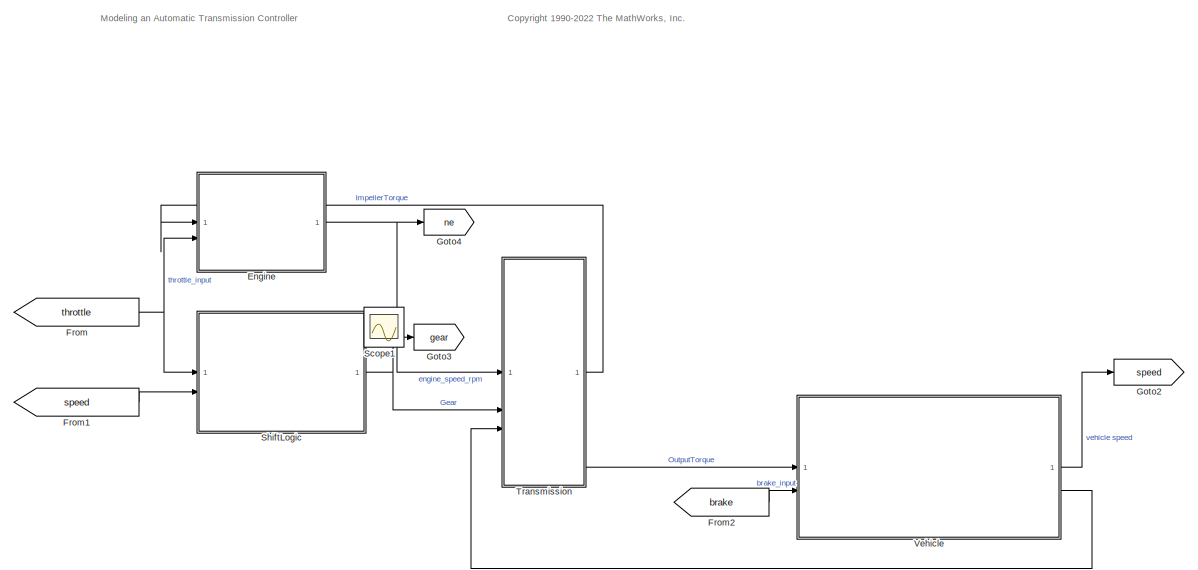
[diagram: root canvas - part 1/3, top right region]
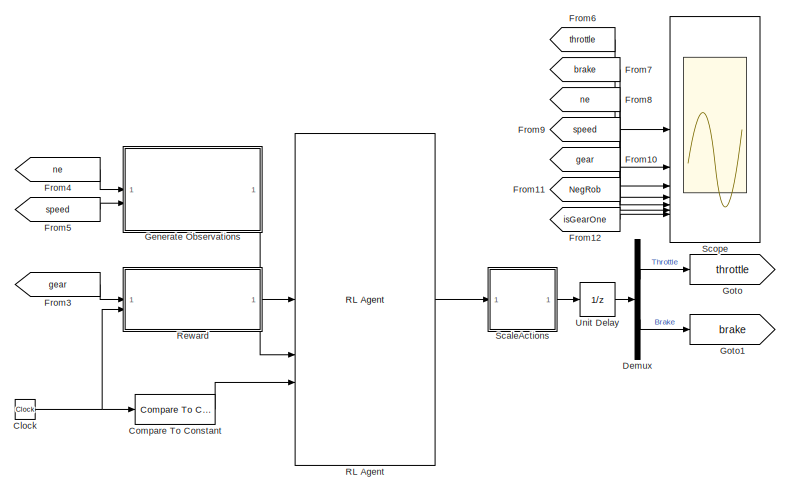
[diagram: root canvas - part 2/3, top left region]
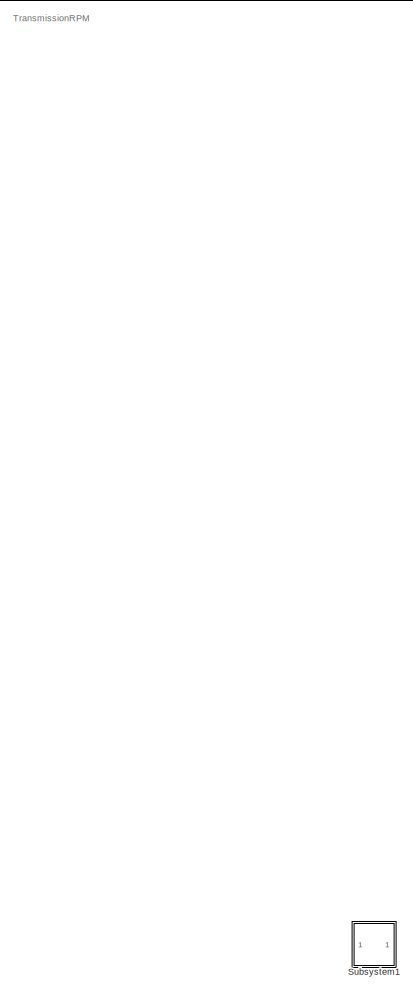
[diagram: root canvas - part 3/3, bottom right region]
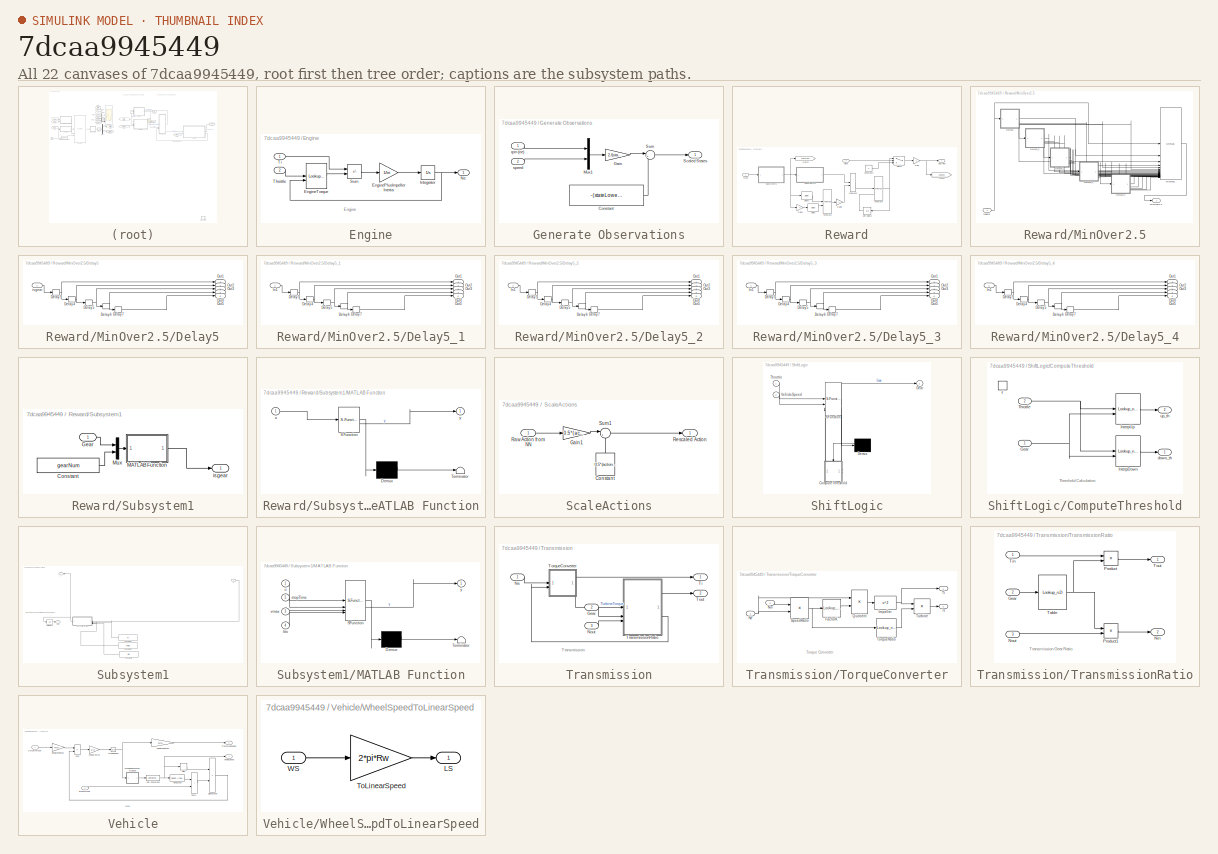
[diagram: thumbnail index - all 22 canvases of the model, root first then tree order]
MODEL slx_7dcaa9945449
KIND model
CONFIG AbsTol = 1e-6
CONFIG EnableMultiTasking = off
CONFIG FixedStep = auto
CONFIG MaxStep = auto
CONFIG MinStep = auto
CONFIG RelTol = 1e-3
CONFIG SampleTimeConstraint = Unconstrained
CONFIG SolverName = ode5
CONFIG StartTime = 0.0
CONFIG StopTime = 30
WORKSPACE source: mxarray member
WORKSPACE CONVERTER_DATA = [0 0.1 0.2 0.3 0.4 0.5 0.6 0.7 0.8 0.81 0.82 0.83 ... (63 elements, 21x3)]
WORKSPACE DOWN_TABLE = [0 0 0 0 0 0 5 5 5 5 30 30 ... (24 elements, 6x4)]
WORKSPACE DOWN_TH_BP = [0 5 40 50 90 100]
WORKSPACE EMAP = [-40 215 245 264 264 267 267 267 267 267 -44 117 ... (110 elements, 10x11)]
WORKSPACE Iei = 0.0219914882836
WORKSPACE NE_VEC = [800 1200 1600 2000 2400 2800 3200 3600 4000 4400 4800]
WORKSPACE TH_VEC = [0 20 30 40 50 60 70 80 90 100]
WORKSPACE TWAIT = 2
WORKSPACE UP_TABLE = [10 10 15 23 40 40 30 30 30 41 70 70 ... (24 elements, 6x4)]
WORKSPACE UP_TH_BP = [0 25 35 50 90 100]
WORKSPACE VEHICLE_DATA = [3.23 40 0.02 1 12.0941478573 0]
BLOCK [Clock] Clock
BLOCK [Reference] Compare To Constant  REF=simulink/Logic and Bit
Operations/Compare
To Constant
  SourceBlock = simulink/Logic and Bit\nOperations/Compare\nTo Constant
  SourceType = Compare To Constant
BLOCK [Demux] Demux
  Outputs = 2
BLOCK [SubSystem] Engine
BLOCK [Gain] Engine/EnginePlusImpellerInertia
  Gain = 1/Iei
  OutDataTypeStr = Inherit: Same as input
  ParamDataTypeStr = Inherit: Same as input
  SaturateOnIntegerOverflow = on
BLOCK [Lookup_n-D] Engine/EngineTorque
  BreakpointsForDimension1 = TH_VEC
  BreakpointsForDimension2 = NE_VEC
  InputPortMap = u0,u1
  Table = EMAP
BLOCK [Integrator] Engine/Integrator
  InitialCondition = 1000
  LimitOutput = on
  LowerSaturationLimit = 600
  UpperSaturationLimit = 6000
  ZeroCross = off
BLOCK [Outport] Engine/Ne
  Unit = rpm
  VectorParamsAs1DForOutWhenUnconnected = off
BLOCK [Sum] Engine/Sum
  IconShape = rectangular
  InputSameDT = on
  Inputs = -+
  OutDataTypeStr = Inherit: Same as first input
  SaturateOnIntegerOverflow = on
BLOCK [Inport] Engine/Throttle
  Port = 2
  Unit = %
BLOCK [Inport] Engine/Ti
  Unit = ft*lbf@torque
BLOCK [From] From
  GotoTag = throttle
BLOCK [From] From1
  GotoTag = speed
BLOCK [From] From10
  GotoTag = gear
BLOCK [From] From11
  GotoTag = NegRob
  TagVisibility = global
BLOCK [From] From12
  GotoTag = isGearOne
  TagVisibility = global
BLOCK [From] From2
  GotoTag = brake
BLOCK [From] From3
  GotoTag = gear
BLOCK [From] From4
  GotoTag = ne
BLOCK [From] From5
  GotoTag = speed
BLOCK [From] From6
  GotoTag = throttle
BLOCK [From] From7
  GotoTag = brake
BLOCK [From] From8
  GotoTag = ne
BLOCK [From] From9
  GotoTag = speed
BLOCK [SubSystem] Generate Observations
BLOCK [Constant] Generate Observations/Constant
  Value = -(stateLowerLimits + stateUpperLimits)./(stateUpperLimits-stateLowerLimits)
BLOCK [Gain] Generate Observations/Gain
  Gain = 2./(stateUpperLimits-stateLowerLimits)
BLOCK [Mux] Generate Observations/Mux1
  DisplayOption = bar
  Inputs = 2
BLOCK [Outport] Generate Observations/Scaled States
BLOCK [Sum] Generate Observations/Sum
  Inputs = |++
BLOCK [Inport] Generate Observations/rpm (ne)
BLOCK [Inport] Generate Observations/speed
  Port = 2
BLOCK [Goto] Goto
  GotoTag = throttle
BLOCK [Goto] Goto1
  GotoTag = brake
BLOCK [Goto] Goto2
  GotoTag = speed
BLOCK [Goto] Goto3
  GotoTag = gear
BLOCK [Goto] Goto4
  GotoTag = ne
BLOCK [Reference] RL Agent  REF=rllib/RL Agent
  SourceBlock = rllib/RL Agent
  SourceType = RL Agent
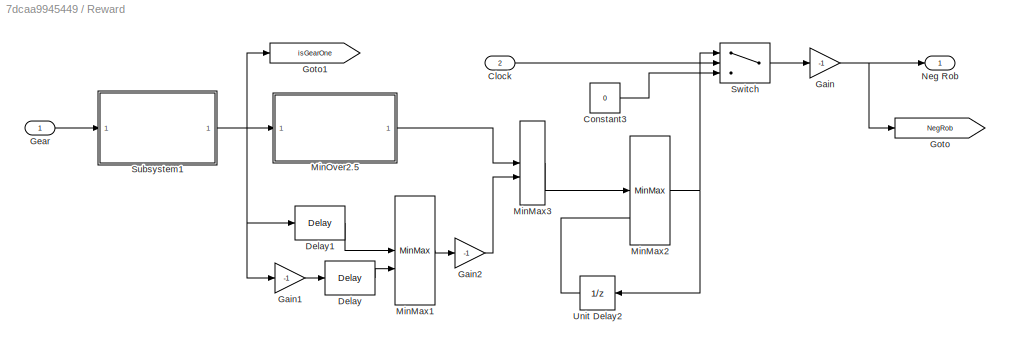
BLOCK [SubSystem] Reward
BLOCK [Inport] Reward/Clock
  Port = 2
BLOCK [Constant] Reward/Constant3
  Value = 0
BLOCK [Delay] Reward/Delay
  DelayLength = (2.5+0.2)/stepsize
  InitialCondition = -1
  InputPortMap = u0
BLOCK [Delay] Reward/Delay1
  DelayLength = (2.5+ 0.1)/stepsize
  InitialCondition = -1
  InputPortMap = u0
BLOCK [Gain] Reward/Gain
  Gain = -1
BLOCK [Gain] Reward/Gain1
  Gain = -1
BLOCK [Gain] Reward/Gain2
  Gain = -1
BLOCK [Inport] Reward/Gear
BLOCK [Goto] Reward/Goto
  GotoTag = NegRob
  TagVisibility = global
BLOCK [Goto] Reward/Goto1
  GotoTag = isGearOne
  TagVisibility = global
BLOCK [MinMax] Reward/MinMax1
  Inputs = 2
BLOCK [MinMax] Reward/MinMax2
  Inputs = 2
BLOCK [MinMax] Reward/MinMax3
  Function = max
  Inputs = 2
BLOCK [SubSystem] Reward/MinOver2.5
BLOCK [SubSystem] Reward/MinOver2.5/Delay5
BLOCK [Delay] Reward/MinOver2.5/Delay5/Delay3
  DelayLength = 0.1/stepsize
  InitialCondition = -1
  InputPortMap = u0
BLOCK [Delay] Reward/MinOver2.5/Delay5/Delay4
  DelayLength = 0.1/stepsize
  InitialCondition = -1
  InputPortMap = u0
BLOCK [Delay] Reward/MinOver2.5/Delay5/Delay5
  DelayLength = 0.1/stepsize
  InitialCondition = -1
  InputPortMap = u0
BLOCK [Delay] Reward/MinOver2.5/Delay5/Delay6
  DelayLength = 0.1/stepsize
  InitialCondition = -1
  InputPortMap = u0
BLOCK [Delay] Reward/MinOver2.5/Delay5/Delay7
  DelayLength = 0.1/stepsize
  InitialCondition = -1
  InputPortMap = u0
BLOCK [Outport] Reward/MinOver2.5/Delay5/Out1
BLOCK [Outport] Reward/MinOver2.5/Delay5/Out2
  Port = 2
BLOCK [Outport] Reward/MinOver2.5/Delay5/Out3
  Port = 3
BLOCK [Outport] Reward/MinOver2.5/Delay5/Out4
  Port = 4
BLOCK [Outport] Reward/MinOver2.5/Delay5/Out5
  Port = 5
BLOCK [Inport] Reward/MinOver2.5/Delay5/isgear
BLOCK [SubSystem] Reward/MinOver2.5/Delay5_1
BLOCK [Delay] Reward/MinOver2.5/Delay5_1/Delay3
  DelayLength = 0.1/stepsize
  InitialCondition = -1
  InputPortMap = u0
BLOCK [Delay] Reward/MinOver2.5/Delay5_1/Delay4
  DelayLength = 0.1/stepsize
  InitialCondition = -1
  InputPortMap = u0
BLOCK [Delay] Reward/MinOver2.5/Delay5_1/Delay5
  DelayLength = 0.1/stepsize
  InitialCondition = -1
  InputPortMap = u0
BLOCK [Delay] Reward/MinOver2.5/Delay5_1/Delay6
  DelayLength = 0.1/stepsize
  InitialCondition = -1
  InputPortMap = u0
BLOCK [Delay] Reward/MinOver2.5/Delay5_1/Delay7
  DelayLength = 0.1/stepsize
  InitialCondition = -1
  InputPortMap = u0
BLOCK [Inport] Reward/MinOver2.5/Delay5_1/In1
BLOCK [Outport] Reward/MinOver2.5/Delay5_1/Out1
BLOCK [Outport] Reward/MinOver2.5/Delay5_1/Out2
  Port = 2
BLOCK [Outport] Reward/MinOver2.5/Delay5_1/Out3
  Port = 3
BLOCK [Outport] Reward/MinOver2.5/Delay5_1/Out4
  Port = 4
BLOCK [Outport] Reward/MinOver2.5/Delay5_1/Out5
  Port = 5
BLOCK [SubSystem] Reward/MinOver2.5/Delay5_2
BLOCK [Delay] Reward/MinOver2.5/Delay5_2/Delay3
  DelayLength = 0.1/stepsize
  InitialCondition = -1
  InputPortMap = u0
BLOCK [Delay] Reward/MinOver2.5/Delay5_2/Delay4
  DelayLength = 0.1/stepsize
  InitialCondition = -1
  InputPortMap = u0
BLOCK [Delay] Reward/MinOver2.5/Delay5_2/Delay5
  DelayLength = 0.1/stepsize
  InitialCondition = -1
  InputPortMap = u0
BLOCK [Delay] Reward/MinOver2.5/Delay5_2/Delay6
  DelayLength = 0.1/stepsize
  InitialCondition = -1
  InputPortMap = u0
BLOCK [Delay] Reward/MinOver2.5/Delay5_2/Delay7
  DelayLength = 0.1/stepsize
  InitialCondition = -1
  InputPortMap = u0
BLOCK [Inport] Reward/MinOver2.5/Delay5_2/In1
BLOCK [Outport] Reward/MinOver2.5/Delay5_2/Out1
BLOCK [Outport] Reward/MinOver2.5/Delay5_2/Out2
  Port = 2
BLOCK [Outport] Reward/MinOver2.5/Delay5_2/Out3
  Port = 3
BLOCK [Outport] Reward/MinOver2.5/Delay5_2/Out4
  Port = 4
BLOCK [Outport] Reward/MinOver2.5/Delay5_2/Out5
  Port = 5
BLOCK [SubSystem] Reward/MinOver2.5/Delay5_3
BLOCK [Delay] Reward/MinOver2.5/Delay5_3/Delay3
  DelayLength = 0.1/stepsize
  InitialCondition = -1
  InputPortMap = u0
BLOCK [Delay] Reward/MinOver2.5/Delay5_3/Delay4
  DelayLength = 0.1/stepsize
  InitialCondition = -1
  InputPortMap = u0
BLOCK [Delay] Reward/MinOver2.5/Delay5_3/Delay5
  DelayLength = 0.1/stepsize
  InitialCondition = -1
  InputPortMap = u0
BLOCK [Delay] Reward/MinOver2.5/Delay5_3/Delay6
  DelayLength = 0.1/stepsize
  InitialCondition = -1
  InputPortMap = u0
BLOCK [Delay] Reward/MinOver2.5/Delay5_3/Delay7
  DelayLength = 0.1/stepsize
  InitialCondition = -1
  InputPortMap = u0
BLOCK [Inport] Reward/MinOver2.5/Delay5_3/In1
BLOCK [Outport] Reward/MinOver2.5/Delay5_3/Out1
BLOCK [Outport] Reward/MinOver2.5/Delay5_3/Out2
  Port = 2
BLOCK [Outport] Reward/MinOver2.5/Delay5_3/Out3
  Port = 3
BLOCK [Outport] Reward/MinOver2.5/Delay5_3/Out4
  Port = 4
BLOCK [Outport] Reward/MinOver2.5/Delay5_3/Out5
  Port = 5
BLOCK [SubSystem] Reward/MinOver2.5/Delay5_4
BLOCK [Delay] Reward/MinOver2.5/Delay5_4/Delay3
  DelayLength = 0.1/stepsize
  InitialCondition = -1
  InputPortMap = u0
BLOCK [Delay] Reward/MinOver2.5/Delay5_4/Delay4
  DelayLength = 0.1/stepsize
  InitialCondition = -1
  InputPortMap = u0
BLOCK [Delay] Reward/MinOver2.5/Delay5_4/Delay5
  DelayLength = 0.1/stepsize
  InitialCondition = -1
  InputPortMap = u0
BLOCK [Delay] Reward/MinOver2.5/Delay5_4/Delay6
  DelayLength = 0.1/stepsize
  InitialCondition = -1
  InputPortMap = u0
BLOCK [Delay] Reward/MinOver2.5/Delay5_4/Delay7
  DelayLength = 0.1/stepsize
  InitialCondition = -1
  InputPortMap = u0
BLOCK [Inport] Reward/MinOver2.5/Delay5_4/In1
BLOCK [Outport] Reward/MinOver2.5/Delay5_4/Out1
BLOCK [Outport] Reward/MinOver2.5/Delay5_4/Out2
  Port = 2
BLOCK [Outport] Reward/MinOver2.5/Delay5_4/Out3
  Port = 3
BLOCK [Outport] Reward/MinOver2.5/Delay5_4/Out4
  Port = 4
BLOCK [Outport] Reward/MinOver2.5/Delay5_4/Out5
  Port = 5
BLOCK [MinMax] Reward/MinOver2.5/MinMax1
  Inputs = 26
BLOCK [Outport] Reward/MinOver2.5/MinOver2.5
BLOCK [Inport] Reward/MinOver2.5/isgear1
BLOCK [Outport] Reward/Neg Rob
BLOCK [SubSystem] Reward/Subsystem1
BLOCK [Constant] Reward/Subsystem1/Constant
  Value = gearNum
BLOCK [Inport] Reward/Subsystem1/Gear
BLOCK [SubSystem] Reward/Subsystem1/MATLAB Function
  ErrorFcn = Stateflow.Translate.translate
  LibrarySourceBlock = simulink/User-Defined\nFunctions/MATLAB Function
  PermitHierarchicalResolution = ExplicitOnly
  SFBlockType = MATLAB Function
  TreatAsAtomicUnit = on
BLOCK [Demux] Reward/Subsystem1/MATLAB Function/ Demux 
  Outputs = 1
BLOCK [S-Function] Reward/Subsystem1/MATLAB Function/ SFunction 
  EnableBusSupport = on
  FunctionName = sf_sfun
  PortCounts = [1 2]
  SFcnIsStateOwnerBlock = off
  SFunctionDeploymentMode = off
  Tag = Stateflow S-Function 3
BLOCK [Terminator] Reward/Subsystem1/MATLAB Function/ Terminator 
BLOCK [Inport] Reward/Subsystem1/MATLAB Function/u
BLOCK [Outport] Reward/Subsystem1/MATLAB Function/y
BLOCK [Mux] Reward/Subsystem1/Mux
  DisplayOption = bar
  Inputs = 2
BLOCK [Outport] Reward/Subsystem1/isgear
BLOCK [Switch] Reward/Switch
  InputSameDT = off
  SaturateOnIntegerOverflow = off
  Threshold = specHorizon
BLOCK [UnitDelay] Reward/Unit Delay2
  HasFrameUpgradeWarning = on
  InitialCondition = 10000
  SampleTime = -1
BLOCK [SubSystem] ScaleActions
BLOCK [Constant] ScaleActions/Constant
  NameLocation = right
  Value = 0.5*(actionUpperLimits+actionLowerLimits)
BLOCK [Gain] ScaleActions/Gain1
  Gain = 0.5*(actionUpperLimits-actionLowerLimits)
BLOCK [Inport] ScaleActions/Raw Action from NN
BLOCK [Outport] ScaleActions/Rescaled Action
BLOCK [Sum] ScaleActions/Sum1
  Inputs = |++
BLOCK [Scope] Scope
  Floating = off
  NumInputPorts = 7
  ScopeSpecificationString = Simulink.scopes.TimeScopeBlockCfg('CurrentConfiguration', extmgr.ConfigurationSet(extmgr.Configuration('Core','General UI',true),extmgr.Configuration('Core','Source UI',true),extmgr.Configuration('Sources','WiredSimulink',true,'DataLoggingVariableName','ScopeData1'),extmgr.Configuration('Visuals','Time Domain',true,'SerializedDisplays',{struct('MinYLimReal','50.65644','MaxYLimReal','60.90596','YLa...<+6184ch>
BLOCK [Scope] Scope1
  Floating = off
  IOType = viewer
  NumInputPorts = 1
  ScopeSpecificationString = Simulink.scopes.TimeScopeBlockCfg('CurrentConfiguration', extmgr.ConfigurationSet(extmgr.Configuration('Core','General UI',true),extmgr.Configuration('Core','Source UI',true),extmgr.Configuration('Sources','WiredSimulink',true,'DataLoggingMaxPoints','7500','DataLoggingLimitDataPoints',true,'DataLoggingSaveFormat','Array','DataLoggingDecimation','1','DataLoggingDecimateData',true),extmgr.Configurat...<+1681ch>
BLOCK [SubSystem] ShiftLogic
  ErrorFcn = Stateflow.Translate.translate
  PermitHierarchicalResolution = ExplicitOnly
  SFBlockType = Chart
  TreatAsAtomicUnit = on
BLOCK [Demux] ShiftLogic/ Demux 
  Outputs = 1
BLOCK [S-Function] ShiftLogic/ SFunction 
  EnableBusSupport = on
  FunctionName = sf_sfun
  Parameters = TWAIT
  PortCounts = [4 4]
  SFcnIsStateOwnerBlock = off
  SFunctionDeploymentMode = off
  Tag = Stateflow S-Function 1
BLOCK [SubSystem] ShiftLogic/ComputeThreshold
  PreDeleteFcn = Stateflow.SLINSF.SimulinkMan.removePreDeleteFcn
  UndoDeleteFcn = Stateflow.SLINSF.SimulinkMan.restorePreDeleteFcn
BLOCK [Inport] ShiftLogic/ComputeThreshold/Gear
BLOCK [Lookup_n-D] ShiftLogic/ComputeThreshold/InterpDown
  BreakpointsForDimension1 = DOWN_TH_BP
  BreakpointsForDimension2 = [1:4]
  InputPortMap = u0,u1
  InputSameDT = off
  LockScale = on
  OutDataTypeStr = double
  Table = DOWN_TABLE
BLOCK [Lookup_n-D] ShiftLogic/ComputeThreshold/InterpUp
  BreakpointsForDimension1 = UP_TH_BP
  BreakpointsForDimension2 = [1:4]
  InputPortMap = u0,u1
  InputSameDT = off
  LockScale = on
  OutDataTypeStr = double
  Table = UP_TABLE
BLOCK [Inport] ShiftLogic/ComputeThreshold/Throttle
  Port = 2
BLOCK [Outport] ShiftLogic/ComputeThreshold/down_th
  InitialOutput = 0
  VectorParamsAs1DForOutWhenUnconnected = off
BLOCK [TriggerPort] ShiftLogic/ComputeThreshold/f
  CopyFcn = Stateflow.SLINSF.SimulinkMan.removeBlockPreDeleteFcn
  PreDeleteFcn = Stateflow.SLINSF.SimulinkMan.unsafePredeleteFcn
  StatesWhenEnabling = held
  TriggerType = function-call
  VariantControl = (inherit)
BLOCK [Outport] ShiftLogic/ComputeThreshold/up_th
  InitialOutput = 0
  Port = 2
  VectorParamsAs1DForOutWhenUnconnected = off
BLOCK [Outport] ShiftLogic/Gear
  VectorParamsAs1DForOutWhenUnconnected = off
BLOCK [Inport] ShiftLogic/Throttle
BLOCK [Inport] ShiftLogic/VehicleSpeed
  Port = 2
BLOCK [SubSystem] Subsystem1
  Commented = on
BLOCK [Constant] Subsystem1/Constant4
  Value = Tf
  VectorParams1D = off
BLOCK [Constant] Subsystem1/Constant5
  Value = vmax
  VectorParams1D = off
BLOCK [Constant] Subsystem1/Constant6
  Value = tau
  VectorParams1D = off
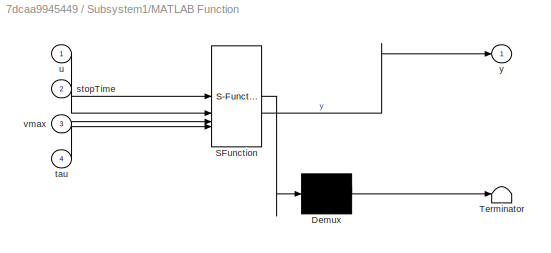
BLOCK [SubSystem] Subsystem1/MATLAB Function
  ErrorFcn = Stateflow.Translate.translate
  LibrarySourceBlock = simulink/User-Defined\nFunctions/MATLAB Function
  PermitHierarchicalResolution = ExplicitOnly
  SFBlockType = MATLAB Function
  TreatAsAtomicUnit = on
BLOCK [Demux] Subsystem1/MATLAB Function/ Demux 
  Outputs = 1
BLOCK [S-Function] Subsystem1/MATLAB Function/ SFunction 
  EnableBusSupport = on
  FunctionName = sf_sfun
  PortCounts = [4 2]
  SFcnIsStateOwnerBlock = off
  SFunctionDeploymentMode = off
  Tag = Stateflow S-Function 2
BLOCK [Terminator] Subsystem1/MATLAB Function/ Terminator 
BLOCK [Inport] Subsystem1/MATLAB Function/stopTime
  Port = 2
BLOCK [Inport] Subsystem1/MATLAB Function/tau
  Port = 4
BLOCK [Inport] Subsystem1/MATLAB Function/u
BLOCK [Inport] Subsystem1/MATLAB Function/vmax
  Port = 3
BLOCK [Outport] Subsystem1/MATLAB Function/y
BLOCK [Outport] Subsystem1/Out2
  Port = 2
BLOCK [UnitDelay] Subsystem1/Unit Delay1
  HasFrameUpgradeWarning = on
  InitialCondition = 1000
  SampleTime = -1
BLOCK [Inport] Subsystem1/u
BLOCK [Outport] Subsystem1/y
BLOCK [SubSystem] Transmission
BLOCK [Inport] Transmission/Gear
  Port = 2
  Unit = 1
BLOCK [Inport] Transmission/Ne
  Unit = rpm
BLOCK [Inport] Transmission/Nout
  Port = 3
  Unit = rpm
BLOCK [Outport] Transmission/Ti
  Unit = ft*lbf@torque
  VectorParamsAs1DForOutWhenUnconnected = off
BLOCK [SubSystem] Transmission/TorqueConverter
  ShowPortLabels = none
BLOCK [Lookup_n-D] Transmission/TorqueConverter/FactorK
  BreakpointsForDimension1 = speedratio
  InputPortMap = u0
  NumberOfTableDimensions = 1
  SaturateOnIntegerOverflow = on
  Table = Kfactor
BLOCK [Fcn] Transmission/TorqueConverter/Impeller
  Expr = u^2
BLOCK [Inport] Transmission/TorqueConverter/Ne
BLOCK [Inport] Transmission/TorqueConverter/Nin
  Port = 2
BLOCK [Product] Transmission/TorqueConverter/Quotient
  InputSameDT = on
  Inputs = */
  OutDataTypeStr = Inherit: Same as first input
  SaturateOnIntegerOverflow = on
BLOCK [Product] Transmission/TorqueConverter/SpeedRatio
  InputSameDT = on
  Inputs = */
  OutDataTypeStr = Inherit: Same as first input
  SaturateOnIntegerOverflow = on
BLOCK [Outport] Transmission/TorqueConverter/Ti
  VectorParamsAs1DForOutWhenUnconnected = off
BLOCK [Lookup_n-D] Transmission/TorqueConverter/TorqueRatio
  BreakpointsForDimension1 = speedratio
  InputPortMap = u0
  NumberOfTableDimensions = 1
  SaturateOnIntegerOverflow = on
  Table = Torkratio
BLOCK [Outport] Transmission/TorqueConverter/Tt
  Port = 2
  VectorParamsAs1DForOutWhenUnconnected = off
BLOCK [Product] Transmission/TorqueConverter/Turbine
  InputSameDT = on
  OutDataTypeStr = Inherit: Same as first input
  SaturateOnIntegerOverflow = on
BLOCK [Outport] Transmission/Tout
  Port = 2
  Unit = ft*lbf@torque
  VectorParamsAs1DForOutWhenUnconnected = off
BLOCK [SubSystem] Transmission/TransmissionRatio
BLOCK [Inport] Transmission/TransmissionRatio/Gear
  Port = 2
  Unit = 1
BLOCK [Outport] Transmission/TransmissionRatio/Nin
  Port = 2
  Unit = rpm
  VectorParamsAs1DForOutWhenUnconnected = off
BLOCK [Inport] Transmission/TransmissionRatio/Nout
  Port = 3
  Unit = rpm
BLOCK [Product] Transmission/TransmissionRatio/Product
  InputSameDT = on
  OutDataTypeStr = Inherit: Same as first input
  SaturateOnIntegerOverflow = on
BLOCK [Product] Transmission/TransmissionRatio/Product1
  InputSameDT = on
  OutDataTypeStr = Inherit: Same as first input
  SaturateOnIntegerOverflow = on
BLOCK [Lookup_n-D] Transmission/TransmissionRatio/Table
  BreakpointsForDimension1 = [1 2 3 4]
  InputPortMap = u0
  LockScale = on
  NumberOfTableDimensions = 1
  OutDataTypeStr = double
  SaturateOnIntegerOverflow = on
  Table = [2.393 1.450 1.000 0.677]
BLOCK [Inport] Transmission/TransmissionRatio/Tin
  Unit = ft*lbf@torque
BLOCK [Outport] Transmission/TransmissionRatio/Tout
  Unit = ft*lbf@torque
  VectorParamsAs1DForOutWhenUnconnected = off
BLOCK [UnitDelay] Unit Delay
  HasFrameUpgradeWarning = on
  SampleTime = -1
BLOCK [SubSystem] Vehicle
  ShowPortLabels = none
BLOCK [Inport] Vehicle/BrakeTorque
  Port = 2
  Unit = ft*lbf@torque
BLOCK [Gain] Vehicle/FinalDriveRatio1
  Gain = Rfd
  OutDataTypeStr = Inherit: Same as input
  ParamDataTypeStr = Inherit: Same as input
  SaturateOnIntegerOverflow = on
BLOCK [Gain] Vehicle/FinalDriveRatio2
  Gain = Rfd
  OutDataTypeStr = Inherit: Same as input
  ParamDataTypeStr = Inherit: Same as input
  SaturateOnIntegerOverflow = on
BLOCK [Inport] Vehicle/OutputTorque
  Unit = ft*lbf@torque
BLOCK [Fcn] Vehicle/RoadLoad
  Expr = rload0 + rload2*u^2
BLOCK [Signum] Vehicle/Sign
BLOCK [Product] Vehicle/SignedLoad
  InputSameDT = on
  OutDataTypeStr = Inherit: Same as first input
  SaturateOnIntegerOverflow = on
BLOCK [Sum] Vehicle/Sum
  IconShape = rectangular
  InputSameDT = on
  Inputs = +-
  OutDataTypeStr = Inherit: Same as first input
  SaturateOnIntegerOverflow = on
BLOCK [Sum] Vehicle/Sum1
  IconShape = rectangular
  InputSameDT = on
  OutDataTypeStr = Inherit: Same as first input
  SaturateOnIntegerOverflow = on
BLOCK [Outport] Vehicle/TransmissionRPM
  Port = 2
  Unit = rpm
  VectorParamsAs1DForOutWhenUnconnected = off
BLOCK [UnitConversion] Vehicle/Unit Conversion
BLOCK [Gain] Vehicle/VehicleInertia
  Gain = 1/Iv
  OutDataTypeStr = Inherit: Same as input
  ParamDataTypeStr = Inherit: Same as input
  SaturateOnIntegerOverflow = on
BLOCK [Outport] Vehicle/VehicleSpeed
  Unit = mph
  VectorParamsAs1DForOutWhenUnconnected = off
BLOCK [Integrator] Vehicle/WheelSpeed
  InitialCondition = N20/Rfd
  ZeroCross = off
BLOCK [SubSystem] Vehicle/WheelSpeedToLinearSpeed
BLOCK [Outport] Vehicle/WheelSpeedToLinearSpeed/LS
  Unit = ft/min
  VectorParamsAs1DForOutWhenUnconnected = off
BLOCK [Gain] Vehicle/WheelSpeedToLinearSpeed/ToLinearSpeed
  Gain = 2*pi*Rw
  OutDataTypeStr = Inherit: Same as input
  ParamDataTypeStr = Inherit: Same as input
  SaturateOnIntegerOverflow = on
BLOCK [Inport] Vehicle/WheelSpeedToLinearSpeed/WS
  Unit = rpm
ANNOTATION (root): TransmissionRPM
ANNOTATION (root): <copyright redacted>
ANNOTATION (root): Modeling an Automatic Transmission Controller
ANNOTATION Engine: Engine
ANNOTATION ShiftLogic/ComputeThreshold: Threshold Calculation
ANNOTATION Subsystem1: Robustness Calculuator (needs debugging)
ANNOTATION Transmission: Transmission
ANNOTATION Transmission/TorqueConverter: Torque Converter
ANNOTATION Transmission/TransmissionRatio: Transmission Gear Ratio
ANNOTATION Vehicle: Vehicle
NET Clock:1 -> Compare To Constant:1, Reward:2
LINE Compare To Constant:1 -> RL Agent:3
LINE Demux:1 -> Goto:1
LINE Demux:2 -> Goto1:1
LINE Engine/EnginePlusImpellerInertia:1 -> Engine/Integrator:1
LINE Engine/EngineTorque:1 -> Engine/Sum:2
NET Engine/Integrator:1 -> Engine/EngineTorque:2, Engine/Ne:1
LINE Engine/Sum:1 -> Engine/EnginePlusImpellerInertia:1
LINE Engine/Throttle:1 -> Engine/EngineTorque:1
LINE Engine/Ti:1 -> Engine/Sum:1
NET Engine:1 -> Goto4:1, Transmission:1
LINE From10:1 -> Scope:5
LINE From11:1 -> Scope:6
LINE From12:1 -> Scope:7
LINE From1:1 -> ShiftLogic:2
LINE From2:1 -> Vehicle:2
LINE From3:1 -> Reward:1
LINE From4:1 -> Generate Observations:1
LINE From5:1 -> Generate Observations:2
LINE From6:1 -> Scope:1
LINE From7:1 -> Scope:2
LINE From8:1 -> Scope:3
LINE From9:1 -> Scope:4
NET From:1 -> Engine:2, ShiftLogic:1
LINE Generate Observations/Constant:1 -> Generate Observations/Sum:2
LINE Generate Observations/Gain:1 -> Generate Observations/Sum:1
LINE Generate Observations/Mux1:1 -> Generate Observations/Gain:1
LINE Generate Observations/Sum:1 -> Generate Observations/Scaled States:1
LINE Generate Observations/rpm (ne):1 -> Generate Observations/Mux1:1
LINE Generate Observations/speed:1 -> Generate Observations/Mux1:2
LINE Generate Observations:1 -> RL Agent:1
LINE RL Agent:1 -> ScaleActions:1
LINE Reward/Clock:1 -> Reward/Switch:2
LINE Reward/Constant3:1 -> Reward/Switch:3
LINE Reward/Delay1:1 -> Reward/MinMax1:1
LINE Reward/Delay:1 -> Reward/MinMax1:2
LINE Reward/Gain1:1 -> Reward/Delay:1
LINE Reward/Gain2:1 -> Reward/MinMax3:2
NET Reward/Gain:1 -> Reward/Goto:1, Reward/Neg Rob:1
LINE Reward/Gear:1 -> Reward/Subsystem1:1
LINE Reward/MinMax1:1 -> Reward/Gain2:1
NET Reward/MinMax2:1 -> Reward/Switch:1, Reward/Unit Delay2:1
LINE Reward/MinMax3:1 -> Reward/MinMax2:1
NET Reward/MinOver2.5/Delay5/Delay3:1 -> Reward/MinOver2.5/Delay5/Delay4:1, Reward/MinOver2.5/Delay5/Out1:1
NET Reward/MinOver2.5/Delay5/Delay4:1 -> Reward/MinOver2.5/Delay5/Delay5:1, Reward/MinOver2.5/Delay5/Out2:1
NET Reward/MinOver2.5/Delay5/Delay5:1 -> Reward/MinOver2.5/Delay5/Delay6:1, Reward/MinOver2.5/Delay5/Out3:1
NET Reward/MinOver2.5/Delay5/Delay6:1 -> Reward/MinOver2.5/Delay5/Delay7:1, Reward/MinOver2.5/Delay5/Out4:1
LINE Reward/MinOver2.5/Delay5/Delay7:1 -> Reward/MinOver2.5/Delay5/Out5:1
LINE Reward/MinOver2.5/Delay5/isgear:1 -> Reward/MinOver2.5/Delay5/Delay3:1
LINE Reward/MinOver2.5/Delay5:1 -> Reward/MinOver2.5/MinMax1:2
LINE Reward/MinOver2.5/Delay5:2 -> Reward/MinOver2.5/MinMax1:3
LINE Reward/MinOver2.5/Delay5:3 -> Reward/MinOver2.5/MinMax1:4
LINE Reward/MinOver2.5/Delay5:4 -> Reward/MinOver2.5/MinMax1:5
NET Reward/MinOver2.5/Delay5:5 -> Reward/MinOver2.5/Delay5_2:1, Reward/MinOver2.5/MinMax1:6
NET Reward/MinOver2.5/Delay5_1/Delay3:1 -> Reward/MinOver2.5/Delay5_1/Delay4:1, Reward/MinOver2.5/Delay5_1/Out1:1
NET Reward/MinOver2.5/Delay5_1/Delay4:1 -> Reward/MinOver2.5/Delay5_1/Delay5:1, Reward/MinOver2.5/Delay5_1/Out2:1
NET Reward/MinOver2.5/Delay5_1/Delay5:1 -> Reward/MinOver2.5/Delay5_1/Delay6:1, Reward/MinOver2.5/Delay5_1/Out3:1
NET Reward/MinOver2.5/Delay5_1/Delay6:1 -> Reward/MinOver2.5/Delay5_1/Delay7:1, Reward/MinOver2.5/Delay5_1/Out4:1
LINE Reward/MinOver2.5/Delay5_1/Delay7:1 -> Reward/MinOver2.5/Delay5_1/Out5:1
LINE Reward/MinOver2.5/Delay5_1/In1:1 -> Reward/MinOver2.5/Delay5_1/Delay3:1
LINE Reward/MinOver2.5/Delay5_1:1 -> Reward/MinOver2.5/MinMax1:17
LINE Reward/MinOver2.5/Delay5_1:2 -> Reward/MinOver2.5/MinMax1:18
LINE Reward/MinOver2.5/Delay5_1:3 -> Reward/MinOver2.5/MinMax1:19
LINE Reward/MinOver2.5/Delay5_1:4 -> Reward/MinOver2.5/MinMax1:20
NET Reward/MinOver2.5/Delay5_1:5 -> Reward/MinOver2.5/Delay5_4:1, Reward/MinOver2.5/MinMax1:21
NET Reward/MinOver2.5/Delay5_2/Delay3:1 -> Reward/MinOver2.5/Delay5_2/Delay4:1, Reward/MinOver2.5/Delay5_2/Out1:1
NET Reward/MinOver2.5/Delay5_2/Delay4:1 -> Reward/MinOver2.5/Delay5_2/Delay5:1, Reward/MinOver2.5/Delay5_2/Out2:1
NET Reward/MinOver2.5/Delay5_2/Delay5:1 -> Reward/MinOver2.5/Delay5_2/Delay6:1, Reward/MinOver2.5/Delay5_2/Out3:1
NET Reward/MinOver2.5/Delay5_2/Delay6:1 -> Reward/MinOver2.5/Delay5_2/Delay7:1, Reward/MinOver2.5/Delay5_2/Out4:1
LINE Reward/MinOver2.5/Delay5_2/Delay7:1 -> Reward/MinOver2.5/Delay5_2/Out5:1
LINE Reward/MinOver2.5/Delay5_2/In1:1 -> Reward/MinOver2.5/Delay5_2/Delay3:1
LINE Reward/MinOver2.5/Delay5_2:1 -> Reward/MinOver2.5/MinMax1:7
LINE Reward/MinOver2.5/Delay5_2:2 -> Reward/MinOver2.5/MinMax1:8
LINE Reward/MinOver2.5/Delay5_2:3 -> Reward/MinOver2.5/MinMax1:9
LINE Reward/MinOver2.5/Delay5_2:4 -> Reward/MinOver2.5/MinMax1:10
NET Reward/MinOver2.5/Delay5_2:5 -> Reward/MinOver2.5/Delay5_3:1, Reward/MinOver2.5/MinMax1:11
NET Reward/MinOver2.5/Delay5_3/Delay3:1 -> Reward/MinOver2.5/Delay5_3/Delay4:1, Reward/MinOver2.5/Delay5_3/Out1:1
NET Reward/MinOver2.5/Delay5_3/Delay4:1 -> Reward/MinOver2.5/Delay5_3/Delay5:1, Reward/MinOver2.5/Delay5_3/Out2:1
NET Reward/MinOver2.5/Delay5_3/Delay5:1 -> Reward/MinOver2.5/Delay5_3/Delay6:1, Reward/MinOver2.5/Delay5_3/Out3:1
NET Reward/MinOver2.5/Delay5_3/Delay6:1 -> Reward/MinOver2.5/Delay5_3/Delay7:1, Reward/MinOver2.5/Delay5_3/Out4:1
LINE Reward/MinOver2.5/Delay5_3/Delay7:1 -> Reward/MinOver2.5/Delay5_3/Out5:1
LINE Reward/MinOver2.5/Delay5_3/In1:1 -> Reward/MinOver2.5/Delay5_3/Delay3:1
LINE Reward/MinOver2.5/Delay5_3:1 -> Reward/MinOver2.5/MinMax1:12
LINE Reward/MinOver2.5/Delay5_3:2 -> Reward/MinOver2.5/MinMax1:13
LINE Reward/MinOver2.5/Delay5_3:3 -> Reward/MinOver2.5/MinMax1:14
LINE Reward/MinOver2.5/Delay5_3:4 -> Reward/MinOver2.5/MinMax1:15
NET Reward/MinOver2.5/Delay5_3:5 -> Reward/MinOver2.5/Delay5_1:1, Reward/MinOver2.5/MinMax1:16
NET Reward/MinOver2.5/Delay5_4/Delay3:1 -> Reward/MinOver2.5/Delay5_4/Delay4:1, Reward/MinOver2.5/Delay5_4/Out1:1
NET Reward/MinOver2.5/Delay5_4/Delay4:1 -> Reward/MinOver2.5/Delay5_4/Delay5:1, Reward/MinOver2.5/Delay5_4/Out2:1
NET Reward/MinOver2.5/Delay5_4/Delay5:1 -> Reward/MinOver2.5/Delay5_4/Delay6:1, Reward/MinOver2.5/Delay5_4/Out3:1
NET Reward/MinOver2.5/Delay5_4/Delay6:1 -> Reward/MinOver2.5/Delay5_4/Delay7:1, Reward/MinOver2.5/Delay5_4/Out4:1
LINE Reward/MinOver2.5/Delay5_4/Delay7:1 -> Reward/MinOver2.5/Delay5_4/Out5:1
LINE Reward/MinOver2.5/Delay5_4/In1:1 -> Reward/MinOver2.5/Delay5_4/Delay3:1
LINE Reward/MinOver2.5/Delay5_4:1 -> Reward/MinOver2.5/MinMax1:22
LINE Reward/MinOver2.5/Delay5_4:2 -> Reward/MinOver2.5/MinMax1:23
LINE Reward/MinOver2.5/Delay5_4:3 -> Reward/MinOver2.5/MinMax1:24
LINE Reward/MinOver2.5/Delay5_4:4 -> Reward/MinOver2.5/MinMax1:25
LINE Reward/MinOver2.5/Delay5_4:5 -> Reward/MinOver2.5/MinMax1:26
LINE Reward/MinOver2.5/MinMax1:1 -> Reward/MinOver2.5/MinOver2.5:1
NET Reward/MinOver2.5/isgear1:1 -> Reward/MinOver2.5/Delay5:1, Reward/MinOver2.5/MinMax1:1
LINE Reward/MinOver2.5:1 -> Reward/MinMax3:1
LINE Reward/Subsystem1/Constant:1 -> Reward/Subsystem1/Mux:2
LINE Reward/Subsystem1/Gear:1 -> Reward/Subsystem1/Mux:1
LINE Reward/Subsystem1/MATLAB Function:1 -> Reward/Subsystem1/isgear:1
LINE Reward/Subsystem1/Mux:1 -> Reward/Subsystem1/MATLAB Function:1
NET Reward/Subsystem1:1 -> Reward/Delay1:1, Reward/Gain1:1, Reward/Goto1:1, Reward/MinOver2.5:1
LINE Reward/Switch:1 -> Reward/Gain:1
LINE Reward/Unit Delay2:1 -> Reward/MinMax2:2
LINE Reward:1 -> RL Agent:2
LINE ScaleActions/Constant:1 -> ScaleActions/Sum1:2
LINE ScaleActions/Gain1:1 -> ScaleActions/Sum1:1
LINE ScaleActions/Raw Action from NN:1 -> ScaleActions/Gain1:1
LINE ScaleActions/Sum1:1 -> ScaleActions/Rescaled Action:1
LINE ScaleActions:1 -> Unit Delay:1
NET ShiftLogic:1 -> Goto3:1, Transmission:2
LINE Subsystem1/Constant4:1 -> Subsystem1/MATLAB Function:2
LINE Subsystem1/Constant5:1 -> Subsystem1/MATLAB Function:3
LINE Subsystem1/Constant6:1 -> Subsystem1/MATLAB Function:4
NET Subsystem1/MATLAB Function:1 -> Subsystem1/Unit Delay1:1, Subsystem1/y:1
LINE Subsystem1/Unit Delay1:1 -> Subsystem1/Out2:1
LINE Subsystem1/u:1 -> Subsystem1/MATLAB Function:1
LINE Transmission/Gear:1 -> Transmission/TransmissionRatio:2
LINE Transmission/Ne:1 -> Transmission/TorqueConverter:1
LINE Transmission/Nout:1 -> Transmission/TransmissionRatio:3
LINE Transmission/TorqueConverter/FactorK:1 -> Transmission/TorqueConverter/Quotient:2
NET Transmission/TorqueConverter/Impeller:1 -> Transmission/TorqueConverter/Ti:1, Transmission/TorqueConverter/Turbine:1
NET Transmission/TorqueConverter/Ne:1 -> Transmission/TorqueConverter/Quotient:1, Transmission/TorqueConverter/SpeedRatio:2
LINE Transmission/TorqueConverter/Nin:1 -> Transmission/TorqueConverter/SpeedRatio:1
LINE Transmission/TorqueConverter/Quotient:1 -> Transmission/TorqueConverter/Impeller:1
NET Transmission/TorqueConverter/SpeedRatio:1 -> Transmission/TorqueConverter/FactorK:1, Transmission/TorqueConverter/TorqueRatio:1
LINE Transmission/TorqueConverter/TorqueRatio:1 -> Transmission/TorqueConverter/Turbine:2
LINE Transmission/TorqueConverter/Turbine:1 -> Transmission/TorqueConverter/Tt:1
LINE Transmission/TorqueConverter:1 -> Transmission/Ti:1
LINE Transmission/TorqueConverter:2 -> Transmission/TransmissionRatio:1
LINE Transmission/TransmissionRatio/Gear:1 -> Transmission/TransmissionRatio/Table:1
LINE Transmission/TransmissionRatio/Nout:1 -> Transmission/TransmissionRatio/Product1:2
LINE Transmission/TransmissionRatio/Product1:1 -> Transmission/TransmissionRatio/Nin:1
LINE Transmission/TransmissionRatio/Product:1 -> Transmission/TransmissionRatio/Tout:1
NET Transmission/TransmissionRatio/Table:1 -> Transmission/TransmissionRatio/Product1:1, Transmission/TransmissionRatio/Product:2
LINE Transmission/TransmissionRatio/Tin:1 -> Transmission/TransmissionRatio/Product:1
LINE Transmission/TransmissionRatio:1 -> Transmission/Tout:1
LINE Transmission/TransmissionRatio:2 -> Transmission/TorqueConverter:2
LINE Transmission:1 -> Engine:1
LINE Transmission:2 -> Vehicle:1
LINE Unit Delay:1 -> Demux:1
LINE Vehicle/BrakeTorque:1 -> Vehicle/Sum1:2
LINE Vehicle/FinalDriveRatio1:1 -> Vehicle/Sum:1
LINE Vehicle/FinalDriveRatio2:1 -> Vehicle/TransmissionRPM:1
LINE Vehicle/OutputTorque:1 -> Vehicle/FinalDriveRatio1:1
LINE Vehicle/RoadLoad:1 -> Vehicle/Sum1:1
LINE Vehicle/Sign:1 -> Vehicle/SignedLoad:1
LINE Vehicle/SignedLoad:1 -> Vehicle/Sum:2
LINE Vehicle/Sum1:1 -> Vehicle/SignedLoad:2
LINE Vehicle/Sum:1 -> Vehicle/VehicleInertia:1
NET Vehicle/Unit Conversion:1 -> Vehicle/RoadLoad:1, Vehicle/Sign:1, Vehicle/VehicleSpeed:1
LINE Vehicle/VehicleInertia:1 -> Vehicle/WheelSpeed:1
NET Vehicle/WheelSpeed:1 -> Vehicle/FinalDriveRatio2:1, Vehicle/WheelSpeedToLinearSpeed:1
LINE Vehicle/WheelSpeedToLinearSpeed/ToLinearSpeed:1 -> Vehicle/WheelSpeedToLinearSpeed/LS:1
LINE Vehicle/WheelSpeedToLinearSpeed/WS:1 -> Vehicle/WheelSpeedToLinearSpeed/ToLinearSpeed:1
LINE Vehicle/WheelSpeedToLinearSpeed:1 -> Vehicle/Unit Conversion:1
LINE Vehicle:1 -> Goto2:1
LINE Vehicle:2 -> Transmission:3
note: NET lines group one-source signal fan-out (src -> all destinations, sorted); 1:1 wires keep LINE
CHART Reward/Subsystem1/MATLAB Function states=1 transitions=1
  STATE_LABEL 'eML_blk_kernel()'
  STATE_LABEL 'SCRIPT:\nfunction y = fcn(u)\ngear = u(1);\ngearNum = u(2);\n\ny = exp((-(gear-gearNum)^2)/0.1)-0.5;\n\n'
CHART ShiftLogic states=10 transitions=14
  STATE_LABEL 'gear_state'
  STATE_LABEL 'first\nentry:\nGear = 1;'
  STATE_LABEL 'second\nentry:\nGear = 2;'
  STATE_LABEL 'third\nentry:\nGear = 3;'
  STATE_LABEL 'fourth\nentry:\nGear = 4;'
  STATE_LABEL 'UP'
  STATE_LABEL 'UP'
  STATE_LABEL 'UP'
  STATE_LABEL 'DOWN'
  STATE_LABEL 'DOWN'
  STATE_LABEL 'DOWN'
  STATE_LABEL 'first\nentry:\nGear = 1;'
  STATE_LABEL 'second\nentry:\nGear = 2;'
  STATE_LABEL 'third\nentry:\nGear = 3;'
  STATE_LABEL 'fourth\nentry:\nGear = 4;'
  STATE_LABEL 'selection_state\nduring:\n[down_th, up_th] = ComputeThreshold(Gear,Throttle);'
  STATE_LABEL 'steady_state'
  STATE_LABEL 'upshifting'
  STATE_LABEL 'downshifting'
  STATE_LABEL '[VehicleSpeed > up_th]'
  STATE_LABEL '[VehicleSpeed < down_th]'
  STATE_LABEL '[VehicleSpeed > down_th]'
  STATE_LABEL 'after(TWAIT,tick)\n[VehicleSpeed <= down_th]\n{gear_state.DOWN}'
  STATE_LABEL 'after(TWAIT,tick)\n[VehicleSpeed >= up_th]\n{gear_state.UP}'
  STATE_LABEL '[VehicleSpeed < up_th]'
  STATE_LABEL 'steady_state'
  STATE_LABEL 'upshifting'
  STATE_LABEL 'downshifting'
  STATE_LABEL '[down_th,up_th] = ComputeThreshold(Gear,Throttle)'
CHART Subsystem1/MATLAB Function states=1 transitions=1
  STATE_LABEL 'eML_blk_kernel()'
  STATE_LABEL 'SCRIPT:\n% u = (clock, throttle, brake, speed, rpm, gear)\nfunction y = fcn(u,stopTime,vmax,tau)\n    persistent trace  \n    if(isempty(trace)) \n        trace = [];\n    end\n    trace = [trace u];\n    if (u(1)==stopTime)\n        res = 100000;\n        for timeId = 1:size(trace,2)\n            if (trace(1,timeId)<=tau)\n                if ((vmax-trace(4,timeId)) < res)\n                    res = vmax-trace...<+122ch>'
CHART  states=0 transitions=0
CHART  states=0 transitions=0
CHART  states=0 transitions=0
